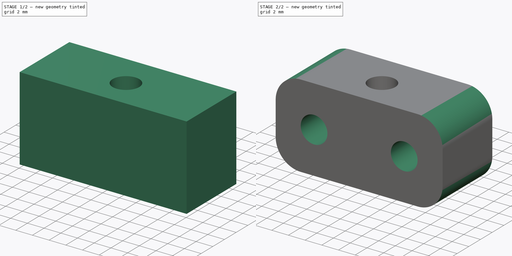
[diagram: build sequence overview — one tinted view per stage of 2, left to right]
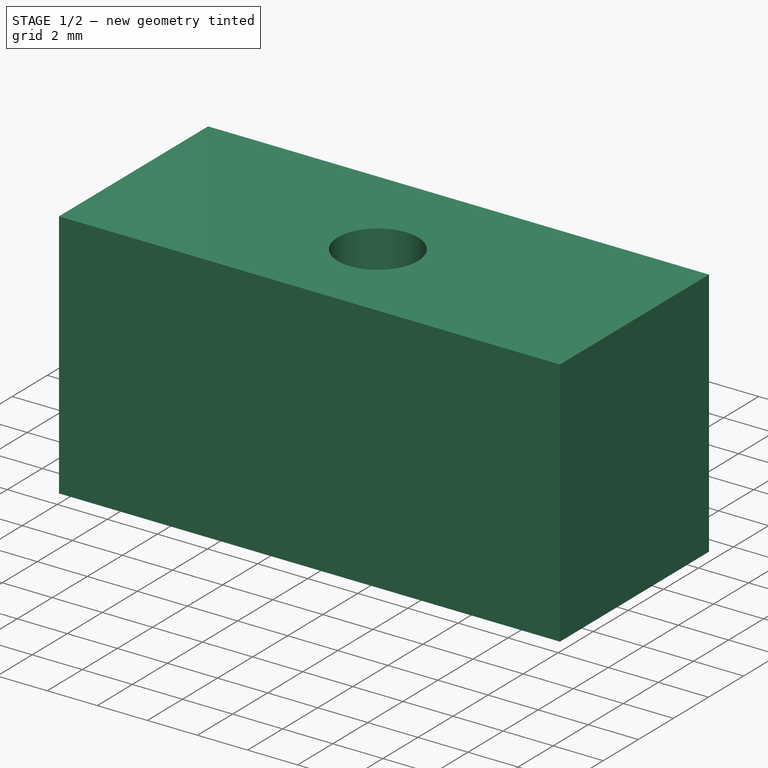
[diagram: stage 1 of 2 — iso view after this stage's code; geometry added in this stage tinted green]
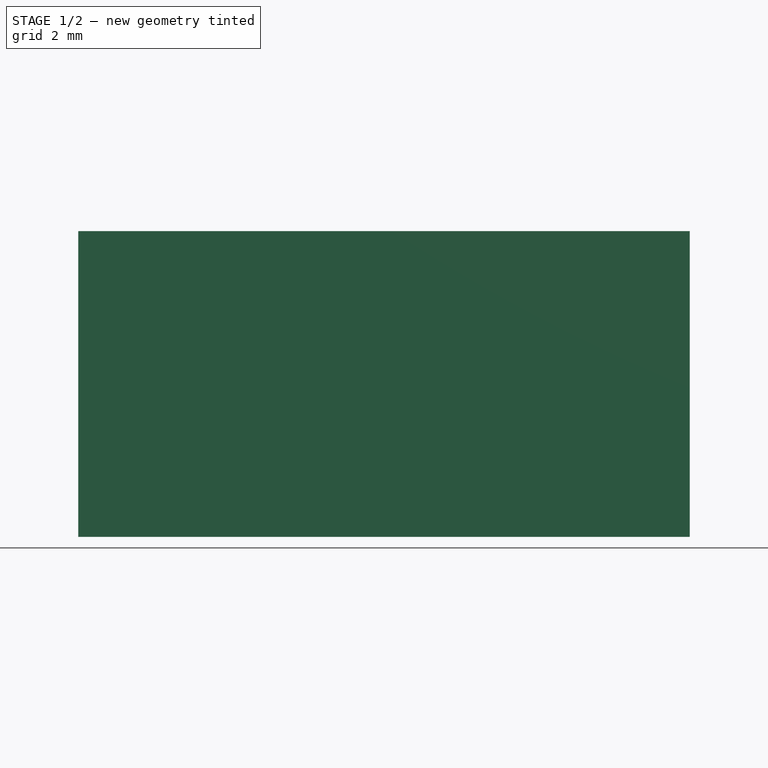
[diagram: stage 1 of 2 — front view after this stage's code; geometry added in this stage tinted green]
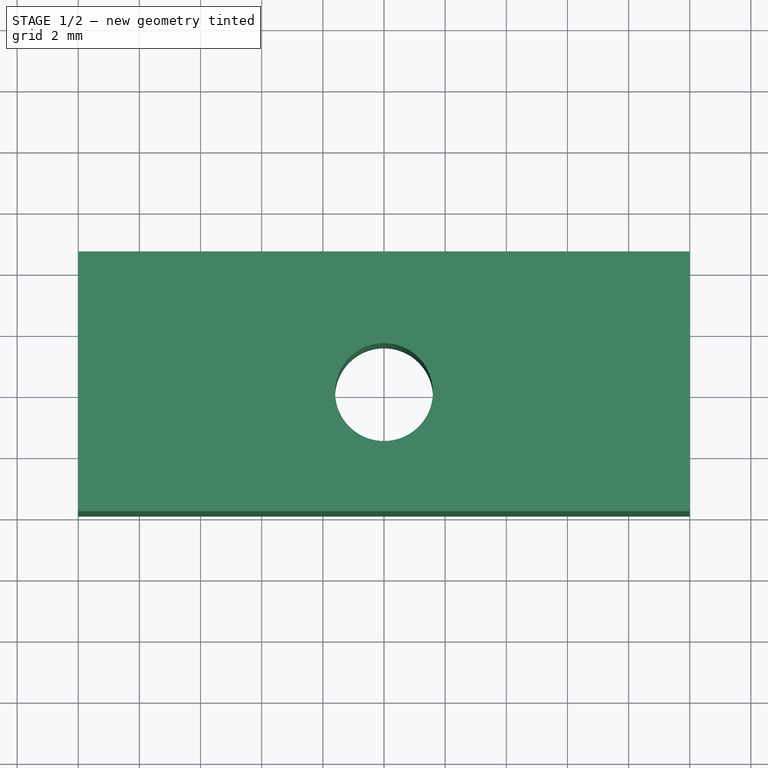
[diagram: stage 1 of 2 — top view after this stage's code; geometry added in this stage tinted green]
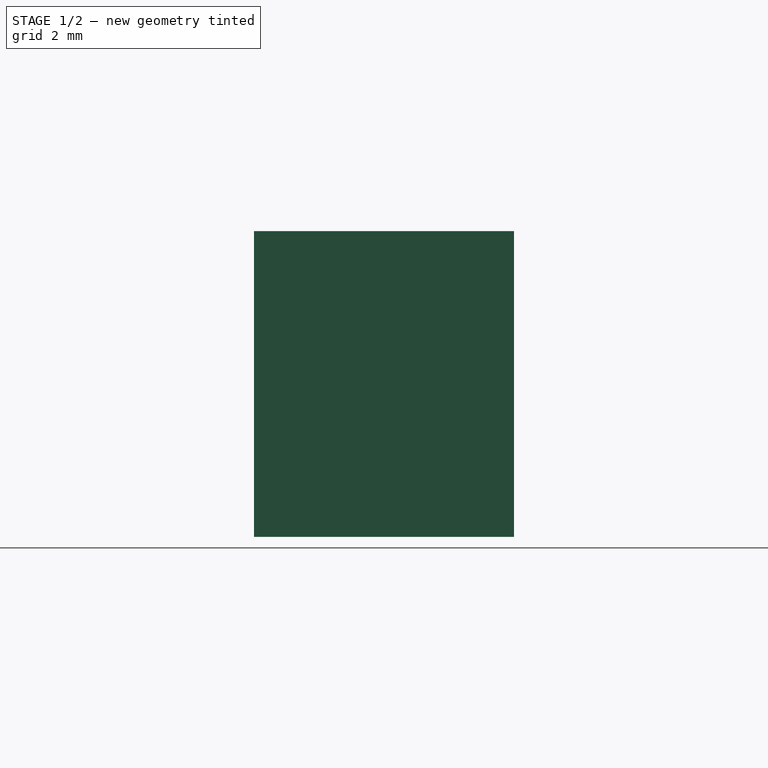
[diagram: stage 1 of 2 — right view after this stage's code; geometry added in this stage tinted green]
FCSTD DOCUMENT  (FreeCAD 0.20R29603 (Git))
Label: suporte-caixa-M3-P2
License: All rights reserved
LicenseURL: http://en.wikipedia.org/wiki/All_rights_reserved
objects: Sketcher::SketchObject×3, PartDesign::Pocket×2, PartDesign::Pad×1, PartDesign::Fillet×1, PartDesign::Body×1
note: 12 computed .brp shape members not serialized (recipe doc carries the construction recipe); baked Part::Feature solids carry a one-line shape summary decoded from their .brp

FEATURE [Sketcher::SketchObject] Sketch
  FullyConstrained = true
  MapMode = 5
  Support = -> [XY_Plane]
  sketch-geometry (9):
    g0: Circle CenterX=0 CenterY=0 CenterZ=0 NormalX=0 NormalY=0 NormalZ=1 AngleXU=0 Radius=1.6
    g1: LineSegment StartX=-10 StartY=4.6 StartZ=0 EndX=10 EndY=4.6 EndZ=0
    g2: LineSegment StartX=10 StartY=4.6 StartZ=0 EndX=10 EndY=-3.9 EndZ=0
    g3: LineSegment StartX=10 StartY=-3.9 StartZ=0 EndX=-10 EndY=-3.9 EndZ=0
    g4: LineSegment StartX=-10 StartY=-3.9 StartZ=0 EndX=-10 EndY=4.6 EndZ=0
    g5: GeomPoint X=0 Y=-1.6 Z=0
    g6: GeomPoint X=0 Y=1.6 Z=0
    g7: LineSegment StartX=10 StartY=0 StartZ=0 EndX=0 EndY=0 EndZ=0
    g8: LineSegment StartX=0 StartY=0 StartZ=0 EndX=-10 EndY=0 EndZ=0
  constraints (24):
    c: Coincident(g0,g-1)
    c: Diameter(g0) = 3.2
    c: Coincident(g1,g2)
    c: Coincident(g2,g3)
    c: Coincident(g3,g4)
    c: Coincident(g4,g1)
    c: Horizontal(g1)
    c: Horizontal(g3)
    c: Vertical(g2)
    c: Vertical(g4)
    c: PointOnObject(g5,g0)
    c: PointOnObject(g5,g-2)
    c: DistanceY(g2,g5) = 2.3
    c: PointOnObject(g6,g0)
    c: PointOnObject(g6,g-2)
    c: DistanceY(g6,g1) = 3
    c: Coincident(g7,g0)
    c: Coincident(g8,g0)
    c: PointOnObject(g8,g-1)
    c: PointOnObject(g8,g4)
    c: PointOnObject(g7,g-1)
    c: PointOnObject(g7,g2)
    c: Equal(g7,g8)
    c: DistanceX(g1,g1) = 20
FEATURE [PartDesign::Pad] Pad
  Direction = (0,0,1)
  Length = 10
  Length2 = 10
  Profile = -> Sketch
  ReferenceAxis = -> Sketch [N_Axis]
  Type = 0
FEATURE [Sketcher::SketchObject] Sketch001
  ExternalGeometry = -> [Pad]
  FullyConstrained = true
  MapMode = 5
  Placement = pos=(0,4.6,0) rot=(0,0.707107,0.707107;3.14159rad)
  Support = -> [Pad]
  sketch-geometry (18):
    g0: LineSegment StartX=10 StartY=10 StartZ=0 EndX=-10 EndY=0 EndZ=0
    g1: GeomPoint X=0 Y=5 Z=0
    g2: LineSegment StartX=-5.4 StartY=1.99778 StartZ=0 EndX=-2.8 EndY=3.49889 EndZ=0
    g3: LineSegment StartX=-2.8 StartY=3.49889 StartZ=0 EndX=-2.8 EndY=6.50111 EndZ=0
    g4: LineSegment StartX=-2.8 StartY=6.50111 StartZ=0 EndX=-5.4 EndY=8.00222 EndZ=0
    g5: LineSegment StartX=-5.4 StartY=8.00222 StartZ=0 EndX=-8 EndY=6.50111 EndZ=0
    g6: LineSegment StartX=-8 StartY=6.50111 StartZ=0 EndX=-8 EndY=3.49889 EndZ=0
    g7: LineSegment StartX=-8 StartY=3.49889 StartZ=0 EndX=-5.4 EndY=1.99778 EndZ=0
    g8: Circle CenterX=-5.4 CenterY=5 CenterZ=0 NormalX=0 NormalY=0 NormalZ=1 AngleXU=0 Radius=3.00222
    g9: LineSegment StartX=5.4 StartY=1.99778 StartZ=0 EndX=8 EndY=3.49889 EndZ=0
    g10: LineSegment StartX=8 StartY=3.49889 StartZ=0 EndX=8 EndY=6.50111 EndZ=0
    g11: LineSegment StartX=8 StartY=6.50111 StartZ=0 EndX=5.4 EndY=8.00222 EndZ=0
    g12: LineSegment StartX=5.4 StartY=8.00222 StartZ=0 EndX=2.8 EndY=6.50111 EndZ=0
    g13: LineSegment StartX=2.8 StartY=6.50111 StartZ=0 EndX=2.8 EndY=3.49889 EndZ=0
    g14: LineSegment StartX=2.8 StartY=3.49889 StartZ=0 EndX=5.4 EndY=1.99778 EndZ=0
    g15: Circle CenterX=5.4 CenterY=5 CenterZ=0 NormalX=0 NormalY=0 NormalZ=1 AngleXU=0 Radius=3.00222
    g16: LineSegment StartX=-5.4 StartY=5 StartZ=0 EndX=0 EndY=5 EndZ=0
    g17: LineSegment StartX=0 StartY=5 StartZ=0 EndX=5.4 EndY=5 EndZ=0
  constraints (42):
    c: Coincident(g0,g-3)
    c: Coincident(g0,g-4)
    c: PointOnObject(g1,g-2)
    c: PointOnObject(g1,g0)
    c: Coincident(g2,g3)
    c: Coincident(g3,g4)
    c: Coincident(g4,g5)
    c: Coincident(g5,g6)
    c: Coincident(g6,g7)
    c: Coincident(g7,g2)
    c: Equal(g2, g3-g7) x5
    c: PointOnObject(g2,g8)
    c: PointOnObject(g3,g8)
    c: PointOnObject(g4,g8)
    c: PointOnObject(g5,g8)
    c: PointOnObject(g6,g8)
    c: PointOnObject(g7,g8)
    c: Coincident(g9,g10)
    c: Coincident(g10,g11)
    c: Coincident(g11,g12)
    c: Coincident(g12,g13)
    c: Coincident(g13,g14)
    c: Coincident(g14,g9)
    c: Equal(g9, g10-g14) x5
    c: PointOnObject(g9,g15)
    c: PointOnObject(g10,g15)
    c: PointOnObject(g11,g15)
    c: PointOnObject(g12,g15)
    c: PointOnObject(g13,g15)
    c: PointOnObject(g14,g15)
    c: Vertical(g13)
    c: Vertical(g3)
    c: Equal(g8,g15)
    c: DistanceX(g6,g2) = 5.2
    c: Coincident(g16,g8)
    c: Coincident(g17,g16)
    c: Coincident(g17,g15)
    c: Equal(g17,g16)
    c: Coincident(g16,g1)
    c: Horizontal(g17)
    c: Horizontal(g16)
    c: DistanceX(g-4,g5) = 2
FEATURE [PartDesign::Pocket] Pocket
  BaseFeature = -> Pad
  Direction = (0,-1,2e-16)
  Length = 3
  Length2 = 5
  Profile = -> Sketch001
  ReferenceAxis = -> Sketch001 [N_Axis]
  Type = 0
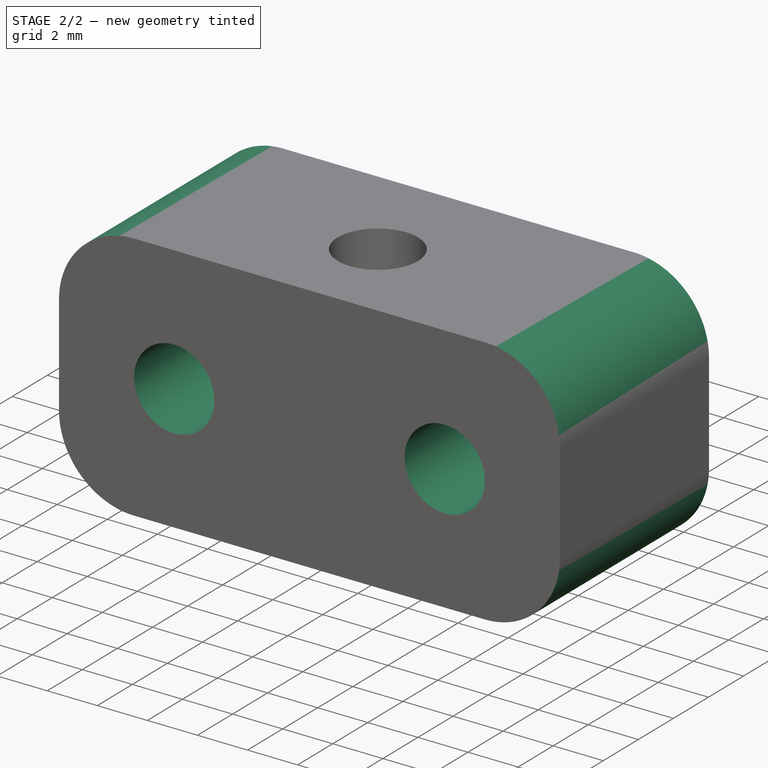
[diagram: stage 2 of 2 — iso view after this stage's code; geometry added in this stage tinted green]
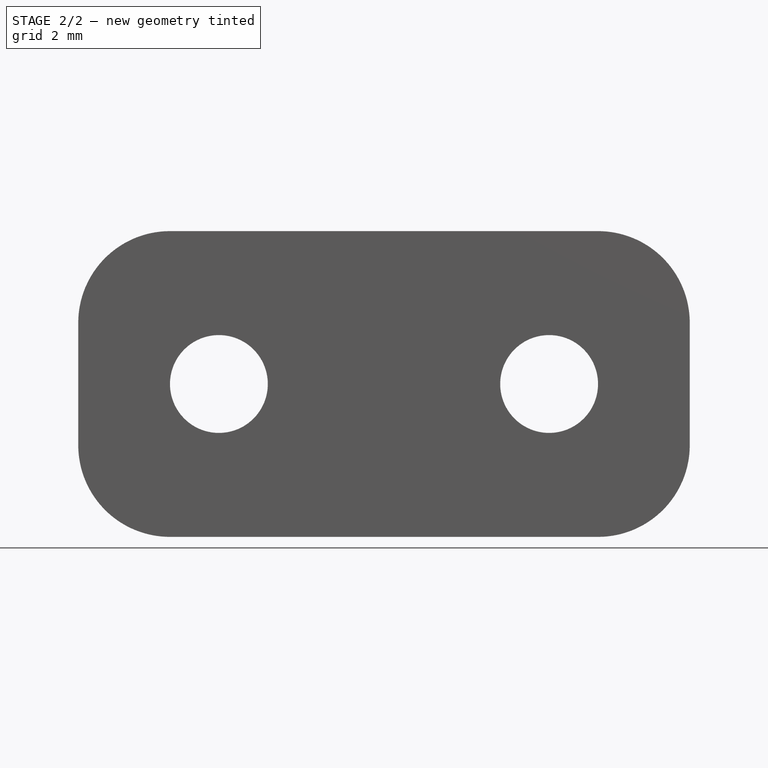
[diagram: stage 2 of 2 — front view after this stage's code; geometry added in this stage tinted green]
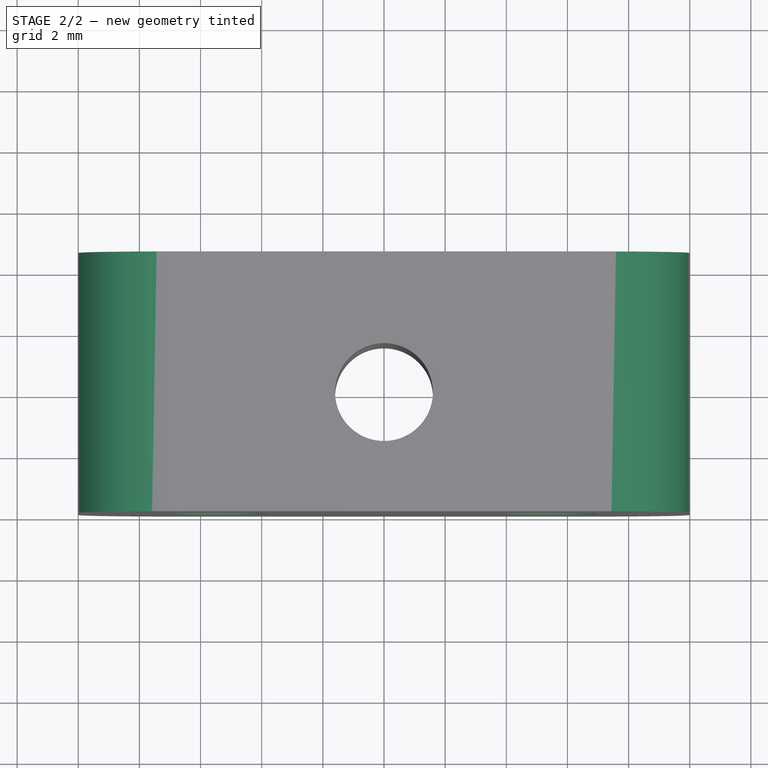
[diagram: stage 2 of 2 — top view after this stage's code; geometry added in this stage tinted green]
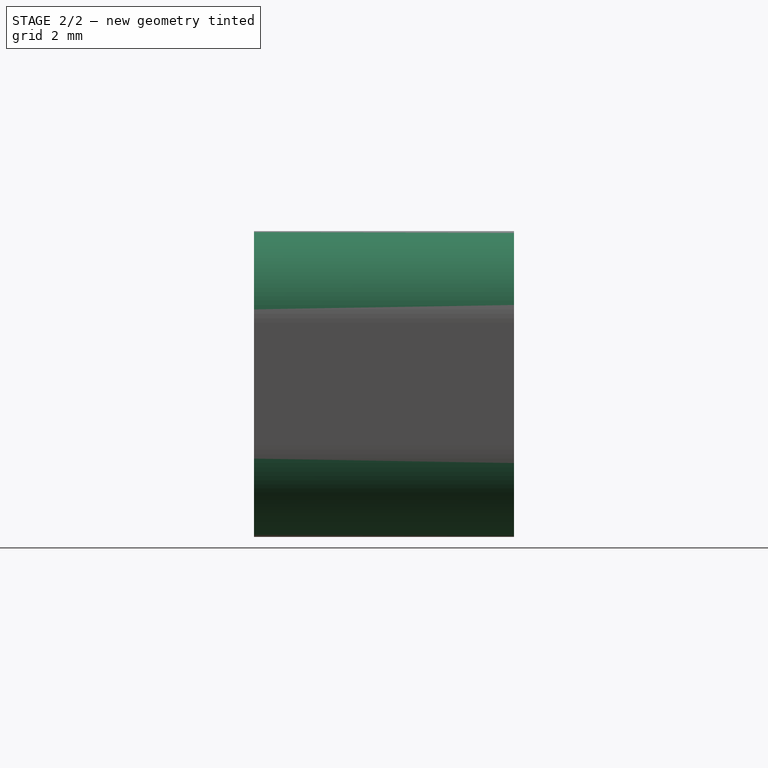
[diagram: stage 2 of 2 — right view after this stage's code; geometry added in this stage tinted green]
FEATURE [Sketcher::SketchObject] Sketch002
  ExternalGeometry = -> [Pocket]
  FullyConstrained = true
  MapMode = 5
  Placement = pos=(0,1.6,-5e-16) rot=(0,0.707107,0.707107;3.14159rad)
  Support = -> [Pocket]
  sketch-geometry (16):
    g0: LineSegment StartX=-5.4 StartY=8.00222 StartZ=0 EndX=-8 EndY=6.50111 EndZ=0
    g1: LineSegment StartX=-8 StartY=6.50111 StartZ=0 EndX=-8 EndY=3.49889 EndZ=0
    g2: LineSegment StartX=-8 StartY=3.49889 StartZ=0 EndX=-5.4 EndY=1.99778 EndZ=0
    g3: LineSegment StartX=-5.4 StartY=1.99778 StartZ=0 EndX=-2.8 EndY=3.49889 EndZ=0
    g4: LineSegment StartX=-2.8 StartY=3.49889 StartZ=0 EndX=-2.8 EndY=6.50111 EndZ=0
    g5: LineSegment StartX=-2.8 StartY=6.50111 StartZ=0 EndX=-5.4 EndY=8.00222 EndZ=0
    g6: Circle CenterX=-5.4 CenterY=5 CenterZ=0 NormalX=0 NormalY=0 NormalZ=1 AngleXU=0 Radius=3.00222
    g7: LineSegment StartX=8 StartY=3.49889 StartZ=0 EndX=8 EndY=6.50111 EndZ=0
    g8: LineSegment StartX=8 StartY=6.50111 StartZ=0 EndX=5.4 EndY=8.00222 EndZ=0
    g9: LineSegment StartX=5.4 StartY=8.00222 StartZ=0 EndX=2.8 EndY=6.50111 EndZ=0
    g10: LineSegment StartX=2.8 StartY=6.50111 StartZ=0 EndX=2.8 EndY=3.49889 EndZ=0
    g11: LineSegment StartX=2.8 StartY=3.49889 StartZ=0 EndX=5.4 EndY=1.99778 EndZ=0
    g12: LineSegment StartX=5.4 StartY=1.99778 StartZ=0 EndX=8 EndY=3.49889 EndZ=0
    g13: Circle CenterX=5.4 CenterY=5 CenterZ=0 NormalX=0 NormalY=0 NormalZ=1 AngleXU=0 Radius=3.00222
    g14: Circle CenterX=-5.4 CenterY=5 CenterZ=0 NormalX=0 NormalY=0 NormalZ=1 AngleXU=0 Radius=1.6
    g15: Circle CenterX=5.4 CenterY=5 CenterZ=0 NormalX=0 NormalY=0 NormalZ=1 AngleXU=0 Radius=1.6
  constraints (34):
    c: Coincident(g0,g1)
    c: Coincident(g1,g2)
    c: Coincident(g2,g3)
    c: Coincident(g3,g4)
    c: Coincident(g4,g5)
    c: Coincident(g5,g0)
    c: Equal(g0, g1-g5) x5
    c: PointOnObject(g0,g6)
    c: PointOnObject(g1,g6)
    c: PointOnObject(g2,g6)
    c: PointOnObject(g3,g6)
    c: PointOnObject(g4,g6)
    c: PointOnObject(g5,g6)
    c: Coincident(g7,g8)
    c: Coincident(g8,g9)
    c: Coincident(g9,g10)
    c: Coincident(g10,g11)
    c: Coincident(g11,g12)
    c: Coincident(g12,g7)
    c: Equal(g7, g8-g12) x5
    c: PointOnObject(g7,g13)
    c: PointOnObject(g8,g13)
    c: PointOnObject(g9,g13)
    c: PointOnObject(g10,g13)
    c: PointOnObject(g11,g13)
    c: PointOnObject(g12,g13)
    c: Coincident(g7,g-4)
    c: Coincident(g7,g-4)
    c: Coincident(g1,g-3)
    c: Coincident(g0,g-3)
    c: Coincident(g14,g6)
    c: Coincident(g15,g13)
    c: Equal(g14,g15)
    c: Diameter(g14) = 3.2
FEATURE [PartDesign::Pocket] Pocket001
  BaseFeature = -> Pocket
  Direction = (0,-1,2e-16)
  Length = 5
  Length2 = 5
  Profile = -> Sketch002
  ReferenceAxis = -> Sketch002 [N_Axis]
  Type = 1
FEATURE [PartDesign::Fillet] Fillet
  Base = -> Pocket001 [Edge20,Edge23,Edge18,Edge19]
  BaseFeature = -> Pocket001
  Radius = 3
  SupportTransform = false
  UseAllEdges = false
FEATURE [PartDesign::Body] Body
  Group = -> [Sketch,Pad,Sketch001,Pocket,Sketch002,Pocket001,Fillet]
  Origin = -> Origin
  Tip = -> Fillet
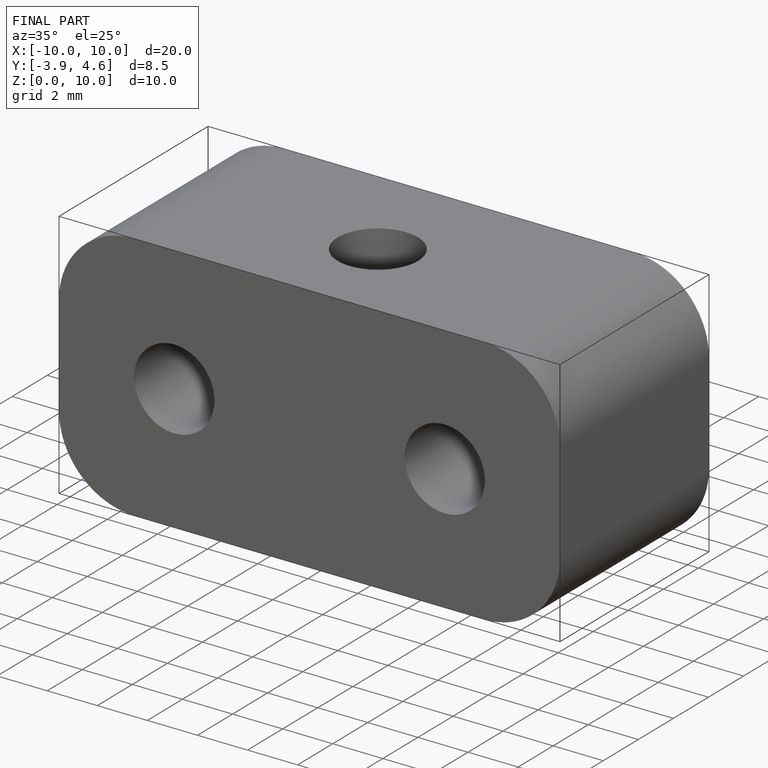
[diagram: finished part — iso view with bounding-box wireframe]
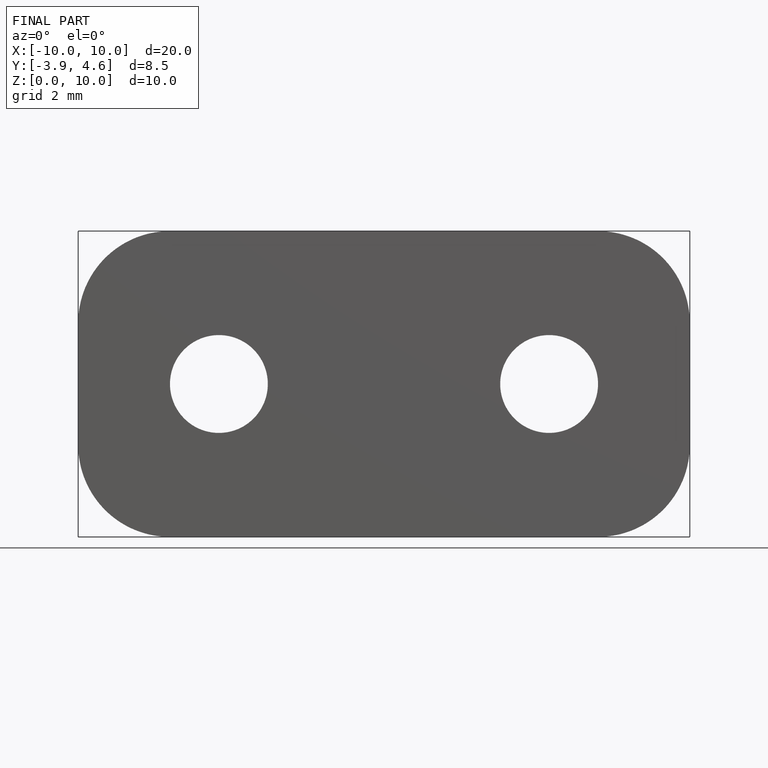
[diagram: finished part — front view with bounding-box wireframe]
